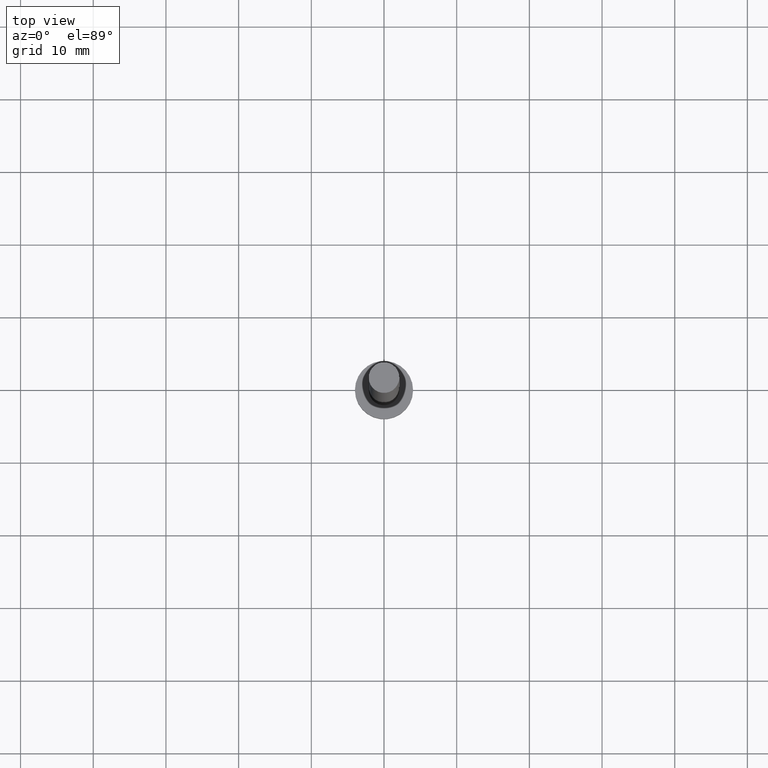
[diagram: clean part render]
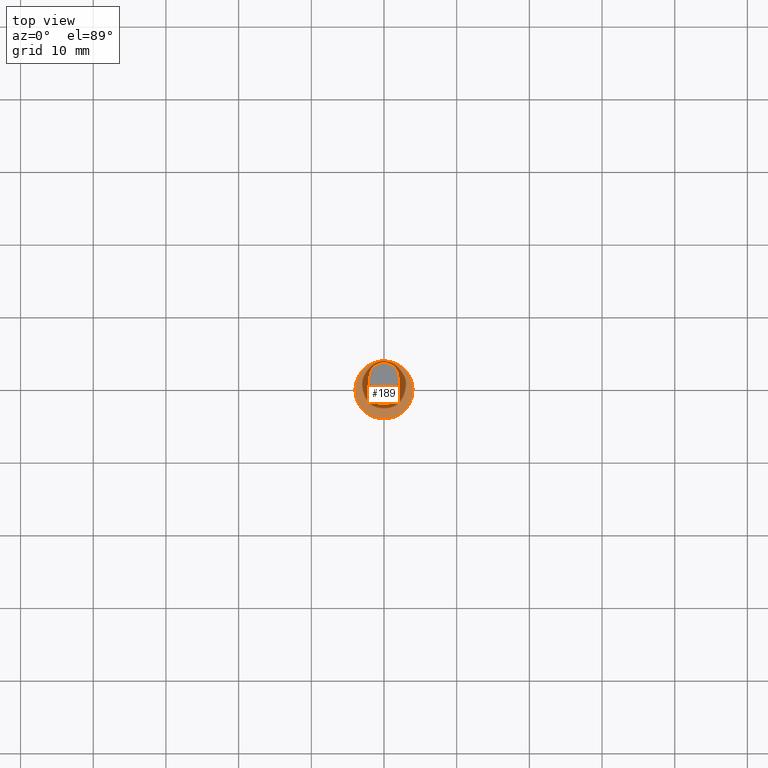
[diagram: same view with one face highlighted and labeled with its STEP entity id]
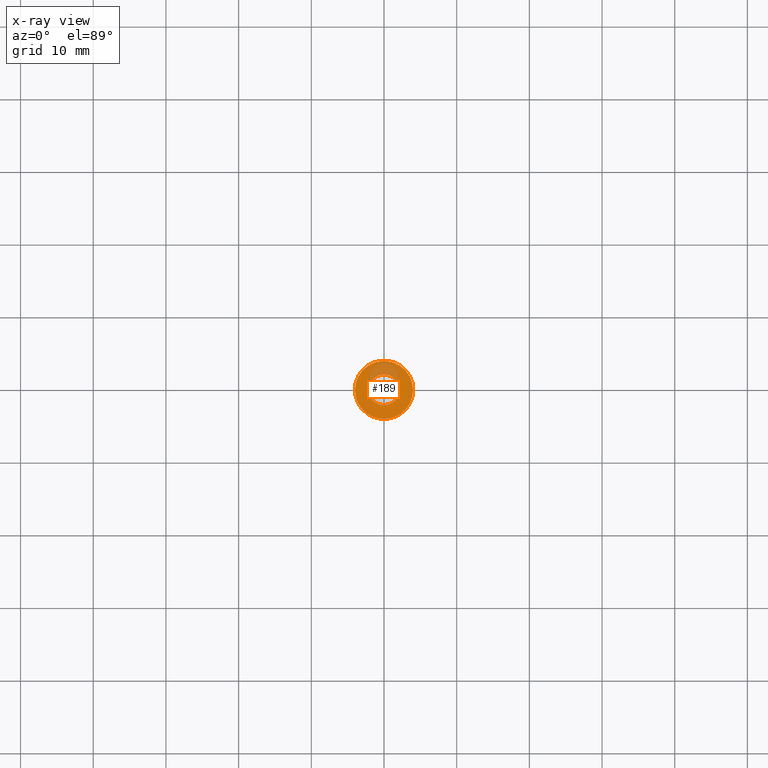
[diagram: x-ray of the same camera — body ghosted, the highlighted face saturated]
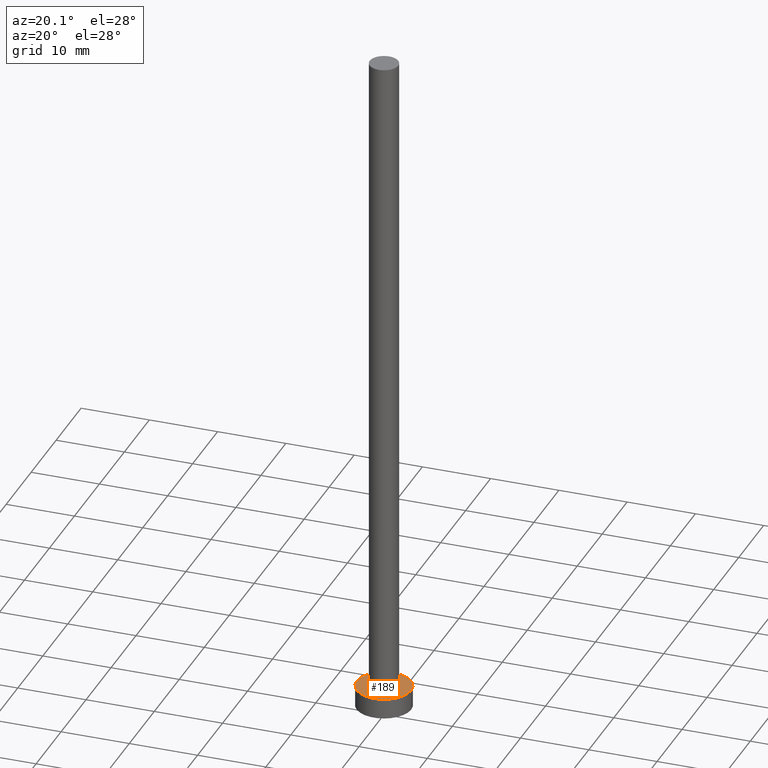
[diagram: same view with one face highlighted and labeled with its STEP entity id]
A machine part, top view. The second image highlights one B-rep face of the part: STEP entity #189.
The next image is the same camera in x-ray: the body ghosted, the highlighted face saturated — about 20% of this face is hidden behind the body in this view.
A second angle (auxiliary view) of the same face is appended — the face is thin or edge-on in the first view.
In plain terms, the highlighted planar face has unit normal (0, 0, 1).
Its self-contained STEP definition (entity closure, byte-faithful):
#8 = CARTESIAN_POINT ( 'NONE',  ( 0.000000000000000000, 0.000000000000000000, 3.000000000000000000 ) ) ;
#9 = VERTEX_POINT ( 'NONE', #62 ) ;
#20 = CARTESIAN_POINT ( 'NONE',  ( -2.100000000000000089, 0.000000000000000000, 3.000000000000000000 ) ) ;
#22 = ORIENTED_EDGE ( 'NONE', *, *, #47, .T. ) ;
#23 = DIRECTION ( 'NONE',  ( 0.000000000000000000, 0.000000000000000000, 1.000000000000000000 ) ) ;
#24 = CARTESIAN_POINT ( 'NONE',  ( -4.000000000000000000, 0.000000000000000000, 3.000000000000000000 ) ) ;
#26 = DIRECTION ( 'NONE',  ( 1.000000000000000000, 0.000000000000000000, 0.000000000000000000 ) ) ;
#33 = CIRCLE ( 'NONE', #175, 2.100000000000000089 ) ;
#42 = DIRECTION ( 'NONE',  ( 0.000000000000000000, 0.000000000000000000, 1.000000000000000000 ) ) ;
#43 = DIRECTION ( 'NONE',  ( 0.000000000000000000, 0.000000000000000000, 1.000000000000000000 ) ) ;
#47 = EDGE_CURVE ( 'NONE', #137, #200, #88, .T. ) ;
#51 = CIRCLE ( 'NONE', #142, 4.000000000000000000 ) ;
#58 = DIRECTION ( 'NONE',  ( 1.000000000000000000, 0.000000000000000000, 0.000000000000000000 ) ) ;
#62 = CARTESIAN_POINT ( 'NONE',  ( 2.100000000000000089, 2.571758278209441464E-16, 3.000000000000000000 ) ) ;
#68 = ORIENTED_EDGE ( 'NONE', *, *, #184, .F. ) ;
#77 = CARTESIAN_POINT ( 'NONE',  ( 4.000000000000000000, 4.898587196589412829E-16, 3.000000000000000000 ) ) ;
#83 = AXIS2_PLACEMENT_3D ( 'NONE', #219, #43, #115 ) ;
#84 = EDGE_LOOP ( 'NONE', ( #68, #120 ) ) ;
#88 = CIRCLE ( 'NONE', #83, 4.000000000000000000 ) ;
#96 = VERTEX_POINT ( 'NONE', #20 ) ;
#97 = DIRECTION ( 'NONE',  ( 0.000000000000000000, 0.000000000000000000, 1.000000000000000000 ) ) ;
#115 = DIRECTION ( 'NONE',  ( 1.000000000000000000, 0.000000000000000000, 0.000000000000000000 ) ) ;
#118 = DIRECTION ( 'NONE',  ( 0.000000000000000000, 0.000000000000000000, 1.000000000000000000 ) ) ;
#120 = ORIENTED_EDGE ( 'NONE', *, *, #196, .F. ) ;
#129 = PLANE ( 'NONE',  #245 ) ;
#134 = AXIS2_PLACEMENT_3D ( 'NONE', #238, #97, #26 ) ;
#135 = EDGE_LOOP ( 'NONE', ( #139, #22 ) ) ;
#137 = VERTEX_POINT ( 'NONE', #77 ) ;
#139 = ORIENTED_EDGE ( 'NONE', *, *, #180, .T. ) ;
#142 = AXIS2_PLACEMENT_3D ( 'NONE', #199, #118, #58 ) ;
#160 = CIRCLE ( 'NONE', #134, 2.100000000000000089 ) ;
#175 = AXIS2_PLACEMENT_3D ( 'NONE', #8, #23, #241 ) ;
#180 = EDGE_CURVE ( 'NONE', #200, #137, #51, .T. ) ;
#184 = EDGE_CURVE ( 'NONE', #96, #9, #33, .T. ) ;
#189 = ADVANCED_FACE ( 'NONE', ( #235, #204 ), #129, .T. ) ;
#196 = EDGE_CURVE ( 'NONE', #9, #96, #160, .T. ) ;
#199 = CARTESIAN_POINT ( 'NONE',  ( 0.000000000000000000, 0.000000000000000000, 3.000000000000000000 ) ) ;
#200 = VERTEX_POINT ( 'NONE', #24 ) ;
#202 = DIRECTION ( 'NONE',  ( 1.000000000000000000, 0.000000000000000000, -0.000000000000000000 ) ) ;
#204 = FACE_OUTER_BOUND ( 'NONE', #135, .T. ) ;
#216 = CARTESIAN_POINT ( 'NONE',  ( 0.000000000000000000, 0.000000000000000000, 3.000000000000000000 ) ) ;
#219 = CARTESIAN_POINT ( 'NONE',  ( 0.000000000000000000, 0.000000000000000000, 3.000000000000000000 ) ) ;
#235 = FACE_BOUND ( 'NONE', #84, .T. ) ;
#238 = CARTESIAN_POINT ( 'NONE',  ( 0.000000000000000000, 0.000000000000000000, 3.000000000000000000 ) ) ;
#241 = DIRECTION ( 'NONE',  ( 1.000000000000000000, 0.000000000000000000, 0.000000000000000000 ) ) ;
#245 = AXIS2_PLACEMENT_3D ( 'NONE', #216, #42, #202 ) ;